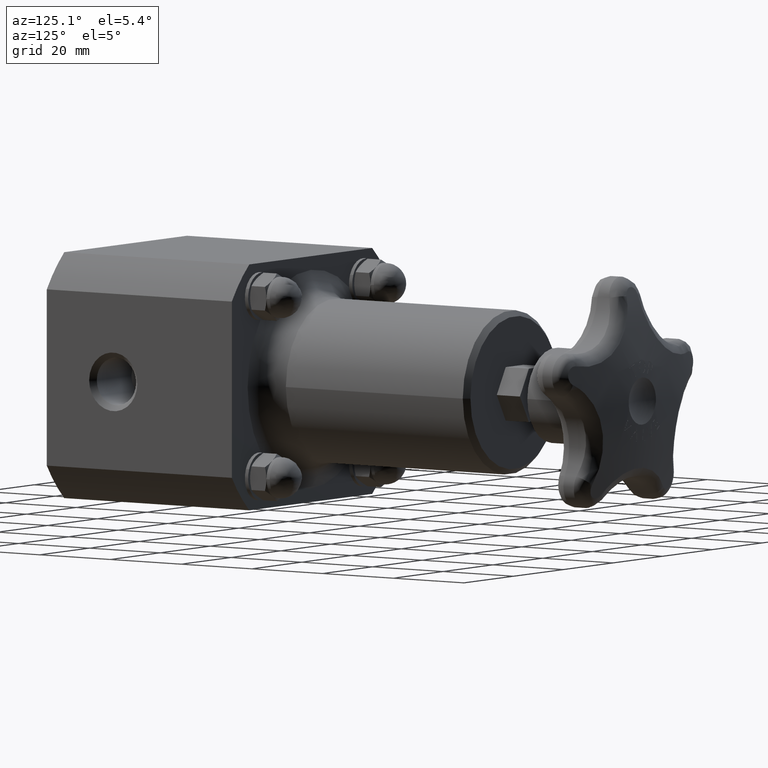
[diagram: clean part render]
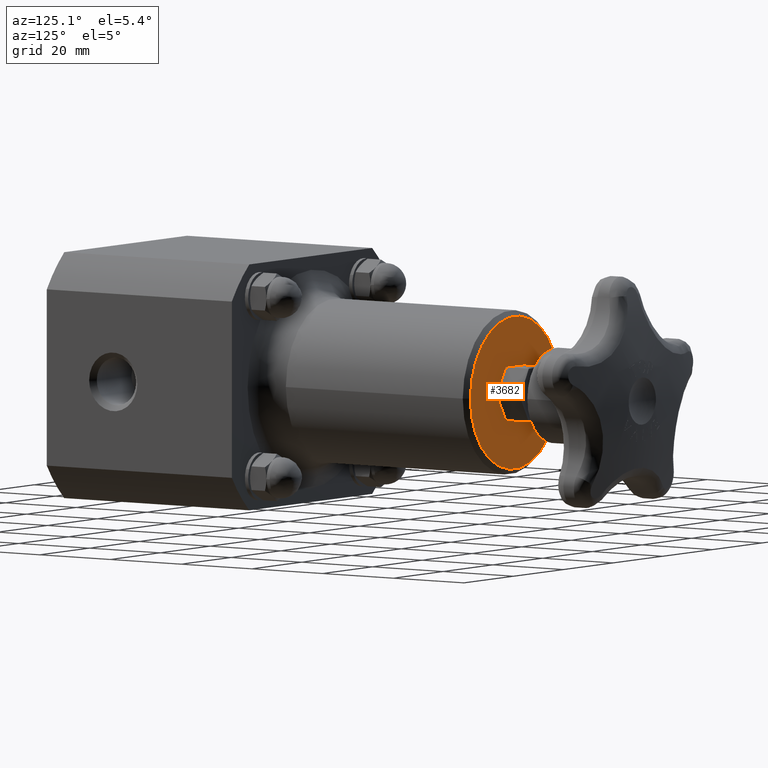
[diagram: same view with one face highlighted and labeled with its STEP entity id]
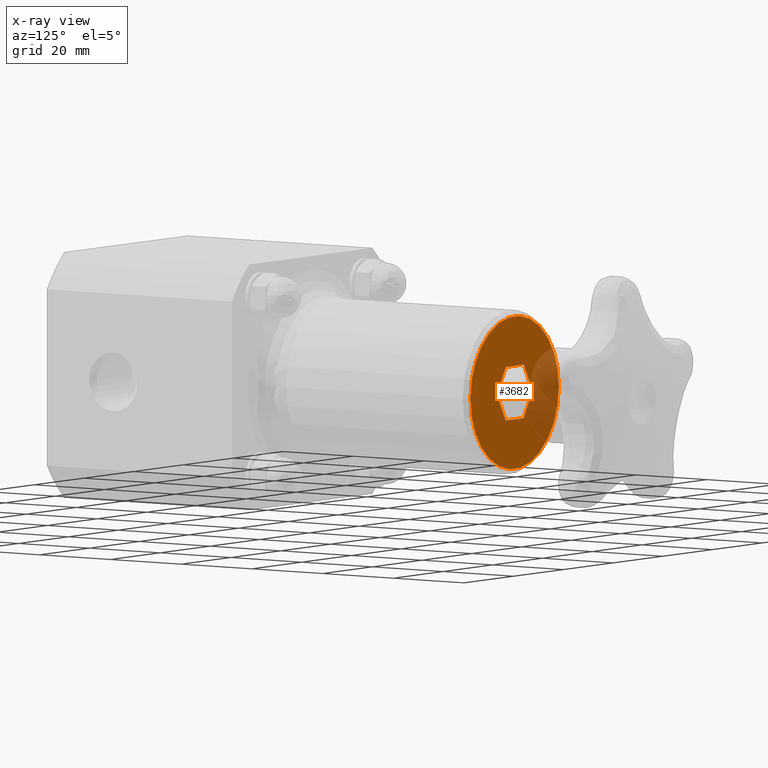
[diagram: x-ray of the same camera — body ghosted, the highlighted face saturated]
A machine part, auxiliary view. The second image highlights one B-rep face of the part: STEP entity #3682.
The next image is the same camera in x-ray: the body ghosted, the highlighted face saturated — about 22% of this face is hidden behind the body in this view.
In plain terms, the highlighted planar face has unit normal (0, 1, 0).
Its self-contained STEP definition (entity closure, byte-faithful):
#1096=CARTESIAN_POINT('',(-0.282324281633727,4.330000000000001,2.330549E-016));
#1097=VERTEX_POINT('',#1096);
#1104=CARTESIAN_POINT('',(-0.141162140816864,4.330000000000001,0.244500000000000));
#1105=VERTEX_POINT('',#1104);
#1106=CARTESIAN_POINT('',(-0.141162140816864,4.330000000000001,0.244500000000000));
#1107=DIRECTION('',(-0.500000000000000,0.0,-0.866025403784439));
#1108=VECTOR('',#1107,0.282324281633727);
#1109=LINE('',#1106,#1108);
#1110=EDGE_CURVE('',#1105,#1097,#1109,.T.);
#1127=CARTESIAN_POINT('',(-0.141162140816863,4.330000000000001,-0.244500000000000));
#1128=VERTEX_POINT('',#1127);
#1135=CARTESIAN_POINT('',(-0.282324281633727,4.330000000000001,1.665335E-016));
#1136=DIRECTION('',(0.500000000000001,0.0,-0.866025403784438));
#1137=VECTOR('',#1136,0.282324281633727);
#1138=LINE('',#1135,#1137);
#1139=EDGE_CURVE('',#1097,#1128,#1138,.T.);
#1151=CARTESIAN_POINT('',(0.141162140816863,4.330000000000001,-0.244499999999999));
#1152=VERTEX_POINT('',#1151);
#1159=CARTESIAN_POINT('',(-0.141162140816863,4.330000000000001,-0.244500000000000));
#1160=DIRECTION('',(1.0,0.0,0.0));
#1161=VECTOR('',#1160,0.282324281633727);
#1162=LINE('',#1159,#1161);
#1163=EDGE_CURVE('',#1128,#1152,#1162,.T.);
#1175=CARTESIAN_POINT('',(0.282324281633727,4.330000000000001,5.528773E-016));
#1176=VERTEX_POINT('',#1175);
#1183=CARTESIAN_POINT('',(0.141162140816863,4.330000000000001,-0.244499999999999));
#1184=DIRECTION('',(0.500000000000000,0.0,0.866025403784439));
#1185=VECTOR('',#1184,0.282324281633727);
#1186=LINE('',#1183,#1185);
#1187=EDGE_CURVE('',#1152,#1176,#1186,.T.);
#1199=CARTESIAN_POINT('',(0.141162140816863,4.330000000000001,0.244500000000000));
#1200=VERTEX_POINT('',#1199);
#1207=CARTESIAN_POINT('',(0.282324281633727,4.330000000000001,5.620504E-016));
#1208=DIRECTION('',(-0.500000000000000,0.0,0.866025403784439));
#1209=VECTOR('',#1208,0.282324281633727);
#1210=LINE('',#1207,#1209);
#1211=EDGE_CURVE('',#1176,#1200,#1210,.T.);
#1224=CARTESIAN_POINT('',(0.141162140816863,4.330000000000001,0.244500000000000));
#1225=DIRECTION('',(-1.0,0.0,0.0));
#1226=VECTOR('',#1225,0.282324281633727);
#1227=LINE('',#1224,#1226);
#1228=EDGE_CURVE('',#1200,#1105,#1227,.T.);
#3658=CARTESIAN_POINT('',(0.428125000000000,4.330000000000001,5.843969E-016));
#3659=DIRECTION('',(0.0,1.0,0.0));
#3660=DIRECTION('',(0.0,0.0,1.0));
#3661=AXIS2_PLACEMENT_3D('',#3658,#3659,#3660);
#3662=PLANE('',#3661);
#3663=CARTESIAN_POINT('',(0.700000000000000,4.330000000000001,6.224242E-016));
#3664=VERTEX_POINT('',#3663);
#3665=CARTESIAN_POINT('',(1.748383E-016,4.330000000000001,5.245148E-016));
#3666=DIRECTION('',(0.0,-1.0,0.0));
#3667=DIRECTION('',(1.0,0.0,0.0));
#3668=AXIS2_PLACEMENT_3D('',#3665,#3666,#3667);
#3669=CIRCLE('',#3668,0.699999999999999);
#3670=EDGE_CURVE('',#3664,#3664,#3669,.T.);
#3671=ORIENTED_EDGE('',*,*,#3670,.F.);
#3672=EDGE_LOOP('',(#3671));
#3673=FACE_OUTER_BOUND('',#3672,.T.);
#3674=ORIENTED_EDGE('',*,*,#1110,.T.);
#3675=ORIENTED_EDGE('',*,*,#1139,.T.);
#3676=ORIENTED_EDGE('',*,*,#1163,.T.);
#3677=ORIENTED_EDGE('',*,*,#1187,.T.);
#3678=ORIENTED_EDGE('',*,*,#1211,.T.);
#3679=ORIENTED_EDGE('',*,*,#1228,.T.);
#3680=EDGE_LOOP('',(#3674,#3675,#3676,#3677,#3678,#3679));
#3681=FACE_BOUND('',#3680,.T.);
#3682=ADVANCED_FACE('',(#3673,#3681),#3662,.T.);